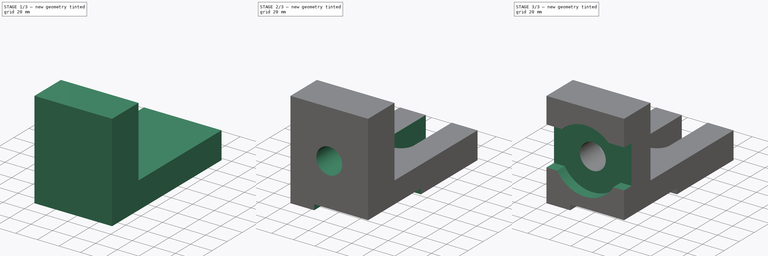
[diagram: build sequence overview — one tinted view per stage of 3, left to right]
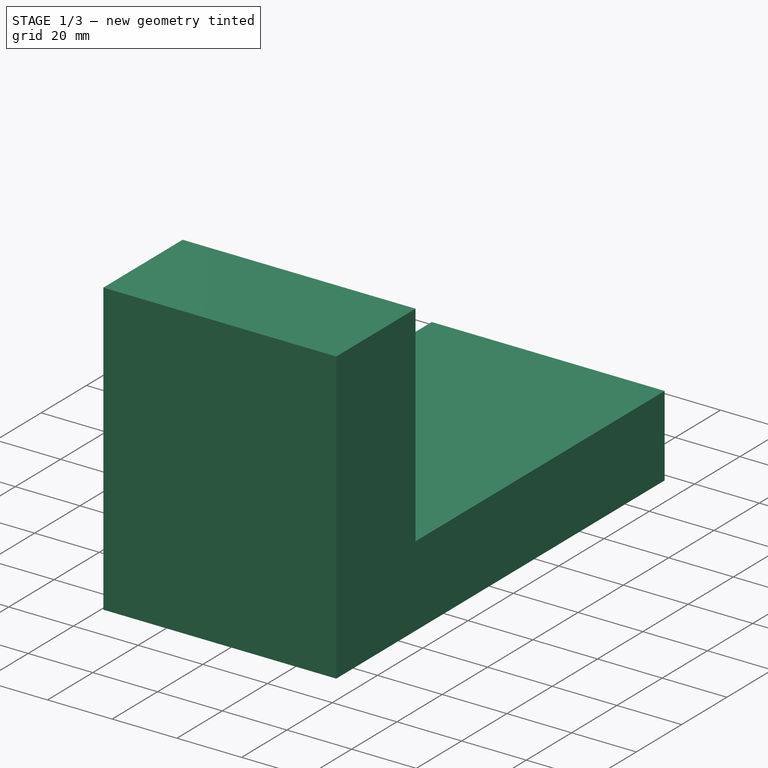
[diagram: stage 1 of 3 — iso view after this stage's code; geometry added in this stage tinted green]
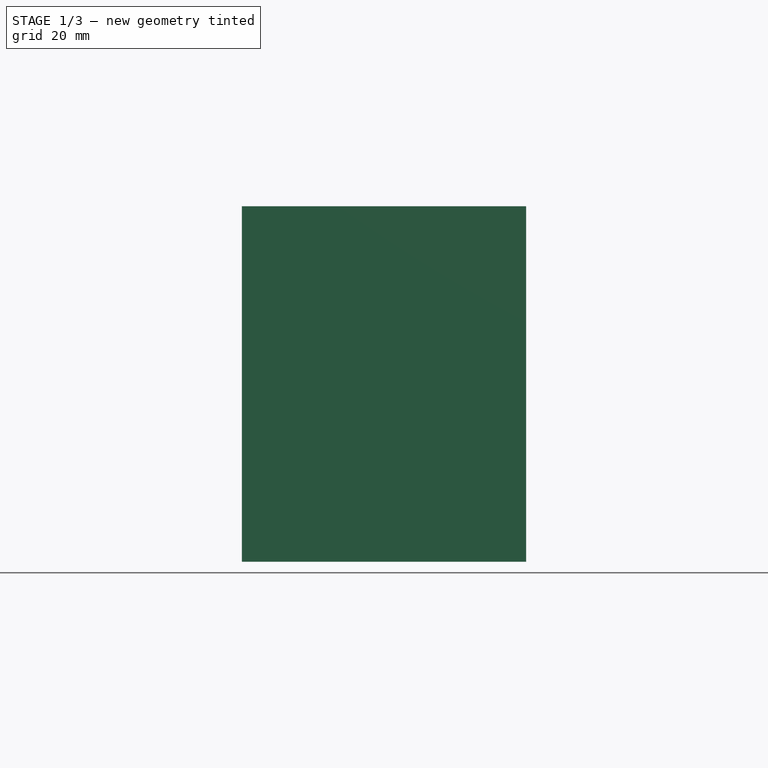
[diagram: stage 1 of 3 — front view after this stage's code; geometry added in this stage tinted green]
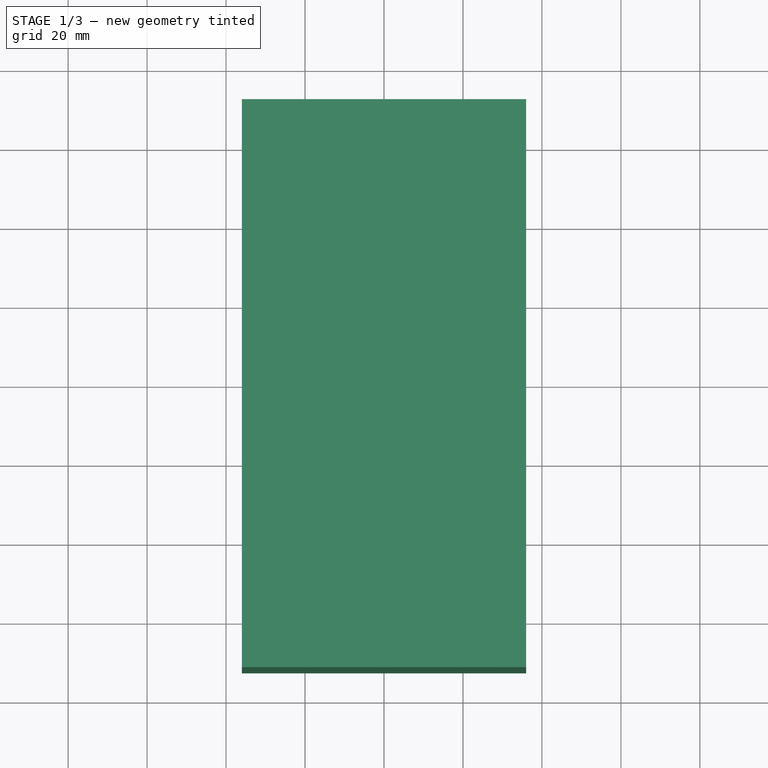
[diagram: stage 1 of 3 — top view after this stage's code; geometry added in this stage tinted green]
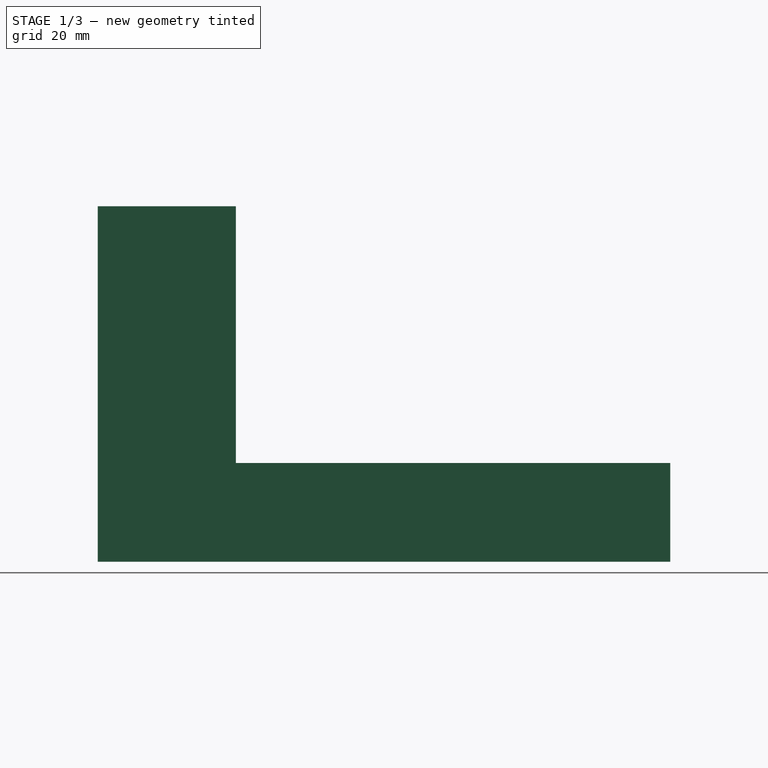
[diagram: stage 1 of 3 — right view after this stage's code; geometry added in this stage tinted green]
FCSTD DOCUMENT  (FreeCAD 0.16R)
Label: Fig 3.35 Final
License: All rights reserved
LicenseURL: http://en.wikipedia.org/wiki/All_rights_reserved
objects: Sketcher::SketchObject×7, PartDesign::Pocket×5, PartDesign::Pad×2
note: 21 computed .brp shape members not serialized (recipe doc carries the construction recipe); baked Part::Feature solids carry a one-line shape summary decoded from their .brp

FEATURE [Sketcher::SketchObject] Sketch
  sketch-geometry (4):
    g0: LineSegment StartX=-36 StartY=72.5 StartZ=0 EndX=36 EndY=72.5 EndZ=0
    g1: LineSegment StartX=36 StartY=72.5 StartZ=0 EndX=36 EndY=-72.5 EndZ=0
    g2: LineSegment StartX=36 StartY=-72.5 StartZ=0 EndX=-36 EndY=-72.5 EndZ=0
    g3: LineSegment StartX=-36 StartY=-72.5 StartZ=0 EndX=-36 EndY=72.5 EndZ=0
  constraints (12):
    c: Coincident(g0,g1)
    c: Coincident(g1,g2)
    c: Coincident(g2,g3)
    c: Coincident(g3,g0)
    c: Horizontal(g0)
    c: Horizontal(g2)
    c: Vertical(g1)
    c: Vertical(g3)
    c: DistanceY(g1,g1) = 145
    c: DistanceX(g0,g0) = 72
    c: Symmetric(g2,g0,g-1)
    c: Symmetric(g1,g2,g-2)
FEATURE [PartDesign::Pad] Pad
  Length = 25
  Length2 = 100
  Sketch = -> Sketch
  Type = 0
FEATURE [Sketcher::SketchObject] Sketch001
  ExternalGeometry = -> [Pad]
  Placement = pos=(0,0,25) rot=(0,0,1;0rad)
  Support = -> Pad [Face6]
  sketch-geometry (4):
    g0: LineSegment StartX=-36 StartY=-37.5 StartZ=0 EndX=36 EndY=-37.5 EndZ=0
    g1: LineSegment StartX=36 StartY=-37.5 StartZ=0 EndX=36 EndY=-72.5 EndZ=0
    g2: LineSegment StartX=36 StartY=-72.5 StartZ=0 EndX=-36 EndY=-72.5 EndZ=0
    g3: LineSegment StartX=-36 StartY=-72.5 StartZ=0 EndX=-36 EndY=-37.5 EndZ=0
  constraints (11):
    c: Coincident(g0,g1)
    c: Coincident(g1,g2)
    c: Coincident(g2,g3)
    c: Coincident(g3,g0)
    c: Horizontal(g0)
    c: Horizontal(g2)
    c: Vertical(g1)
    c: Vertical(g3)
    c: Coincident(g2,g-3)
    c: Coincident(g1,g-3)
    c: DistanceY(g1,g0) = 35
FEATURE [PartDesign::Pad] Pad001
  Length = 65
  Length2 = 100
  Sketch = -> Sketch001
  Type = 0
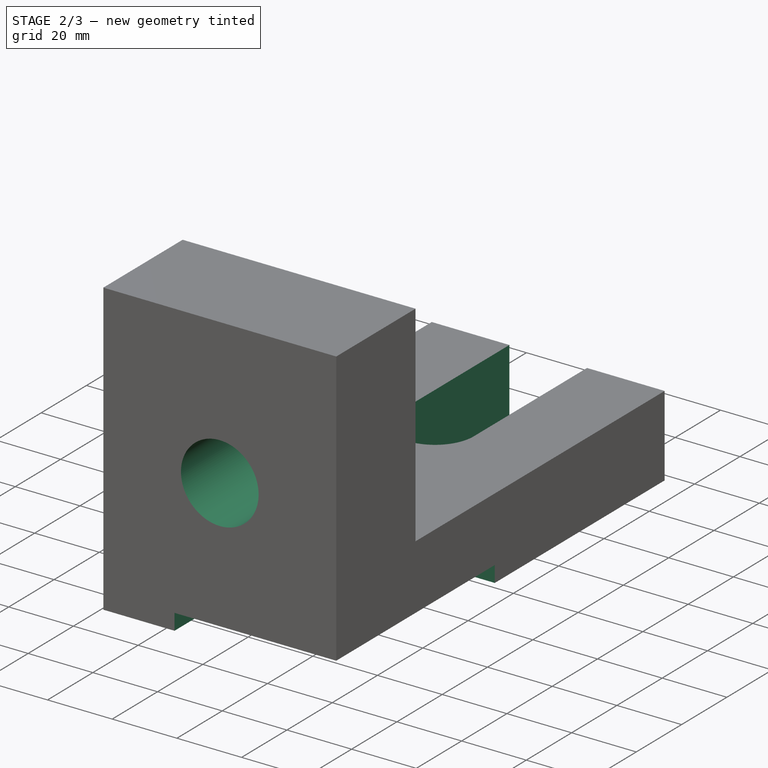
[diagram: stage 2 of 3 — iso view after this stage's code; geometry added in this stage tinted green]
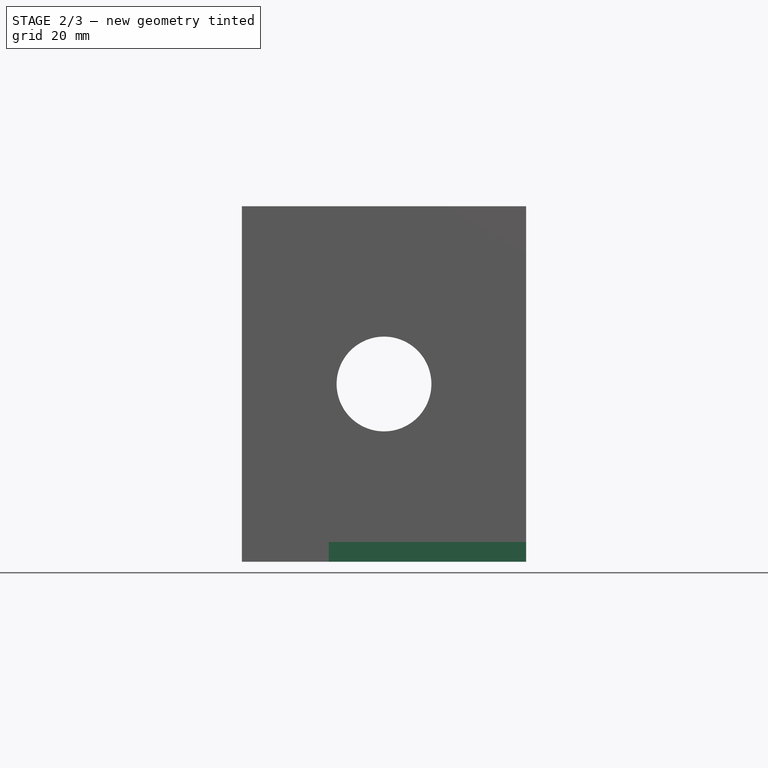
[diagram: stage 2 of 3 — front view after this stage's code; geometry added in this stage tinted green]
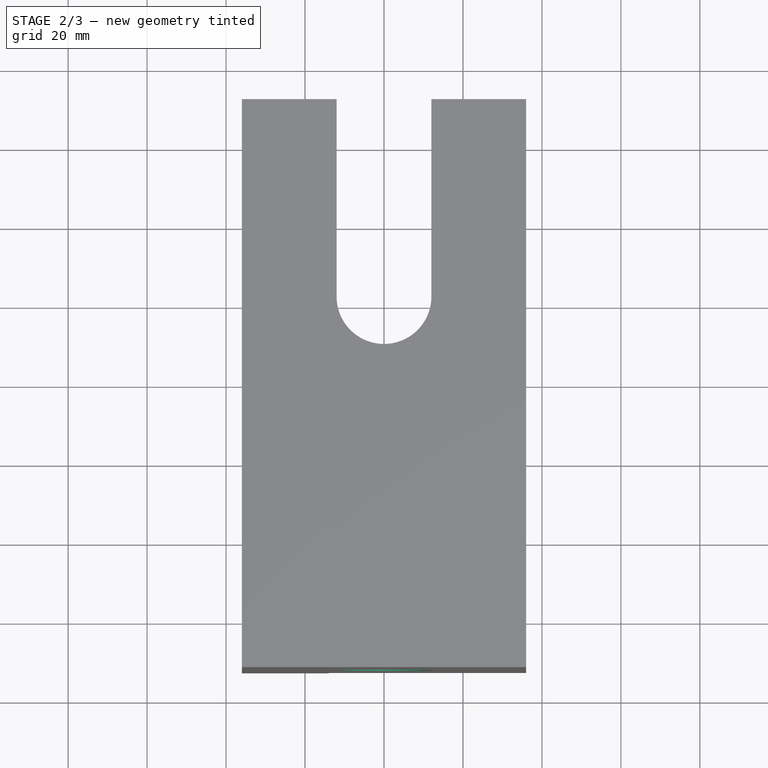
[diagram: stage 2 of 3 — top view after this stage's code; geometry added in this stage tinted green]
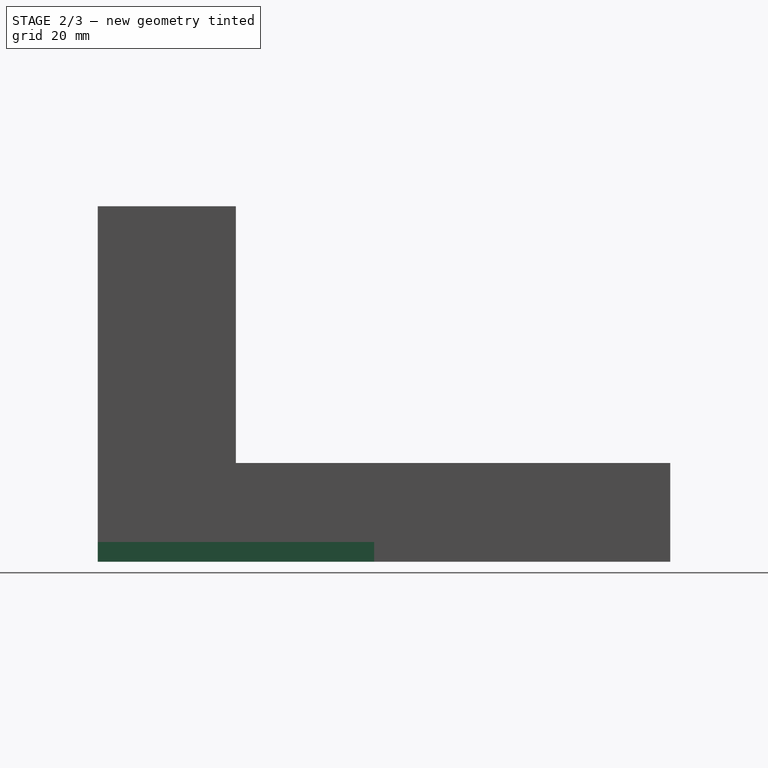
[diagram: stage 2 of 3 — right view after this stage's code; geometry added in this stage tinted green]
FEATURE [Sketcher::SketchObject] Sketch002
  ExternalGeometry = -> [Pad001]
  Placement = pos=(36,0,0) rot=(0.57735,0.57735,0.57735;2.0944rad)
  Support = -> Pad001 [Face7]
  sketch-geometry (4):
    g0: LineSegment StartX=-72.5 StartY=-13.583 StartZ=0 EndX=-2.5 EndY=-13.583 EndZ=0
    g1: LineSegment StartX=-2.5 StartY=-13.583 StartZ=0 EndX=-2.5 EndY=5 EndZ=0
    g2: LineSegment StartX=-2.5 StartY=5 StartZ=0 EndX=-72.5 EndY=5 EndZ=0
    g3: LineSegment StartX=-72.5 StartY=5 StartZ=0 EndX=-72.5 EndY=-13.583 EndZ=0
  constraints (11):
    c: Coincident(g0,g1)
    c: Coincident(g1,g2)
    c: Coincident(g2,g3)
    c: Coincident(g3,g0)
    c: Horizontal(g0)
    c: Horizontal(g2)
    c: Vertical(g1)
    c: Vertical(g3)
    c: DistanceX(g0,g0) = 70
    c: PointOnObject(g2,g-3)
    c: DistanceY(g-1,g1) = 5
FEATURE [PartDesign::Pocket] Pocket
  Length = 50
  Sketch = -> Sketch002
  Type = 0
FEATURE [Sketcher::SketchObject] Sketch003
  ExternalGeometry = -> [Pocket]
  Placement = pos=(0,0,25) rot=(0,0,1;0rad)
  Support = -> Pocket [Face5]
  sketch-geometry (4):
    g0: ArcOfCircle CenterX=0 CenterY=22.5 CenterZ=0 NormalX=0 NormalY=0 NormalZ=1 Radius=12 StartAngle=3.14159 EndAngle=6.28319
    g1: ArcOfCircle CenterX=0 CenterY=75.8232 CenterZ=0 NormalX=0 NormalY=0 NormalZ=1 Radius=12 StartAngle=0 EndAngle=3.14159
    g2: LineSegment StartX=12 StartY=22.5 StartZ=0 EndX=12 EndY=75.8232 EndZ=0
    g3: LineSegment StartX=-12 StartY=22.5 StartZ=0 EndX=-12 EndY=75.8232 EndZ=0
  constraints (9):
    c: Tangent(g0,g3) = 1.5708
    c: Tangent(g0,g2) = -1.5708
    c: Tangent(g2,g1) = -1.5708
    c: Tangent(g3,g1) = 1.5708
    c: Vertical(g2)
    c: Equal(g0,g1)
    c: PointOnObject(g0,g-2)
    c: DistanceY(g0,g-3) = 50
    c: Radius(g0) = 12
FEATURE [PartDesign::Pocket] Pocket001
  Length = 5
  Sketch = -> Sketch003
  Type = 1
FEATURE [Sketcher::SketchObject] Sketch004
  ExternalGeometry = -> [Pocket001]
  Placement = pos=(0,-72.5,0) rot=(1,0,0;1.5708rad)
  Support = -> Pocket001 [Face12]
  sketch-geometry (1):
    g0: Circle CenterX=0 CenterY=45 CenterZ=0 NormalX=0 NormalY=0 NormalZ=1 Radius=12
  constraints (3):
    c: PointOnObject(g0,g-2)
    c: Radius(g0) = 12
    c: DistanceY(g-3,g0) = 45
FEATURE [PartDesign::Pocket] Pocket002
  Length = 5
  Sketch = -> Sketch004
  Type = 1
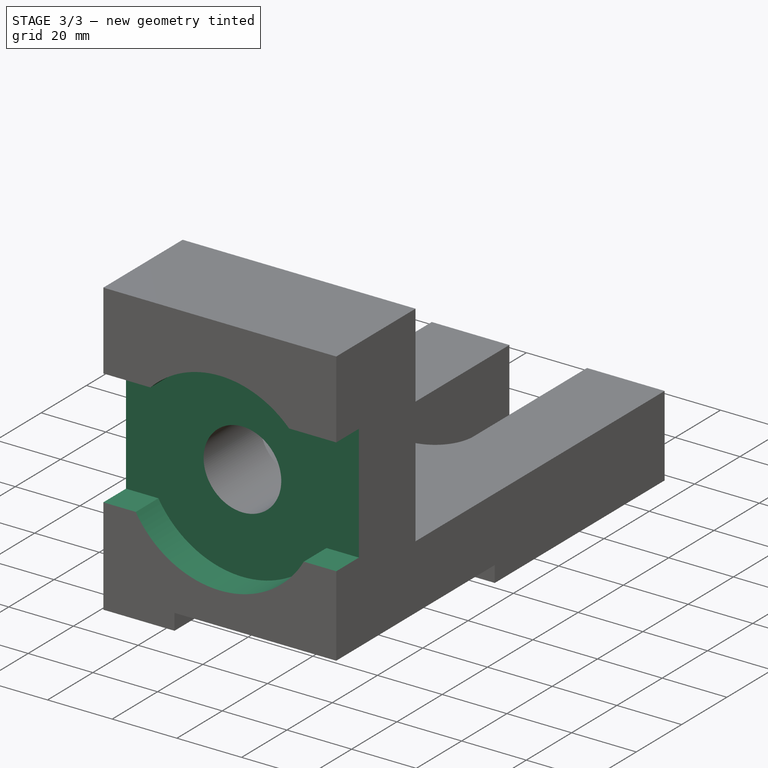
[diagram: stage 3 of 3 — iso view after this stage's code; geometry added in this stage tinted green]
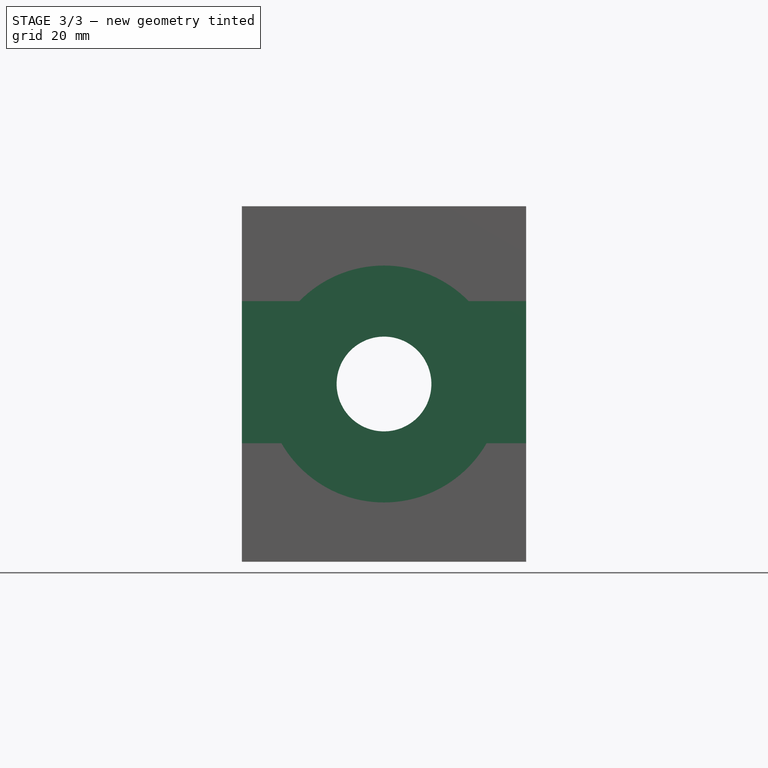
[diagram: stage 3 of 3 — front view after this stage's code; geometry added in this stage tinted green]
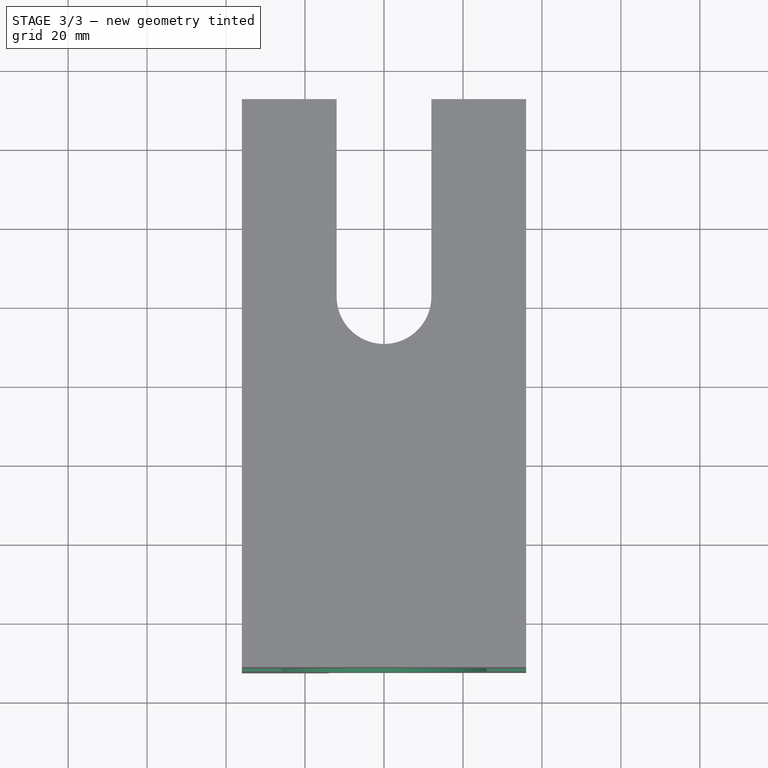
[diagram: stage 3 of 3 — top view after this stage's code; geometry added in this stage tinted green]
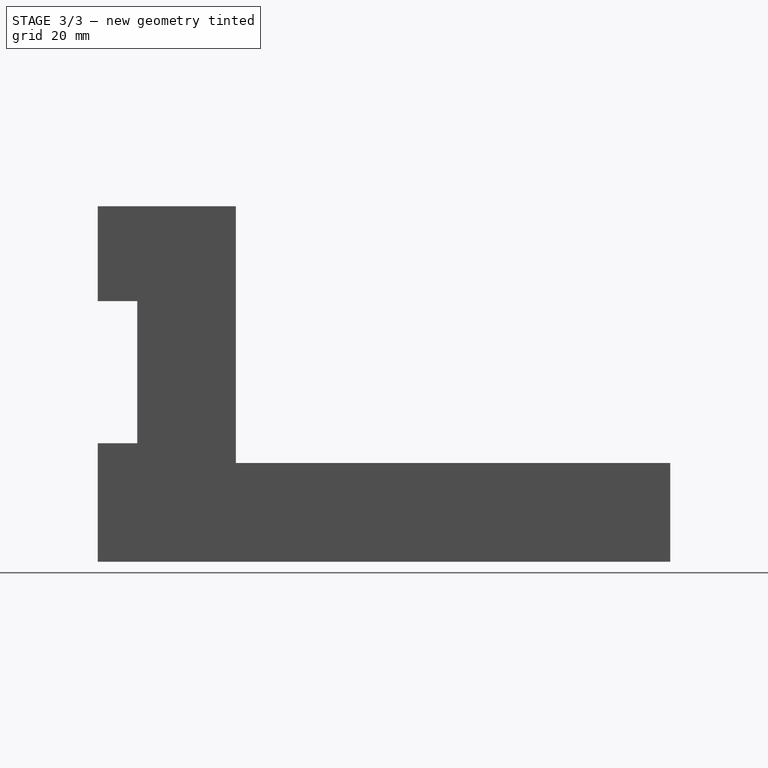
[diagram: stage 3 of 3 — right view after this stage's code; geometry added in this stage tinted green]
FEATURE [Sketcher::SketchObject] Sketch005
  ExternalGeometry = -> [Pocket002]
  Placement = pos=(0,-72.5,0) rot=(1,0,0;1.5708rad)
  Support = -> Pocket002 [Face12]
  sketch-geometry (1):
    g0: Circle CenterX=0 CenterY=45 CenterZ=0 NormalX=0 NormalY=0 NormalZ=1 Radius=30
  constraints (3):
    c: PointOnObject(g0,g-2)
    c: Coincident(g0,g-3)
    c: Radius(g0) = 30
FEATURE [PartDesign::Pocket] Pocket003
  Length = 10
  Sketch = -> Sketch005
  Type = 0
FEATURE [Sketcher::SketchObject] Sketch006
  ExternalGeometry = -> [Pocket003]
  Placement = pos=(36,0,0) rot=(0.57735,0.57735,0.57735;2.0944rad)
  Support = -> Pocket003 [Face9]
  sketch-geometry (4):
    g0: LineSegment StartX=-84.9493 StartY=66 StartZ=0 EndX=-62.5 EndY=66 EndZ=0
    g1: LineSegment StartX=-62.5 StartY=66 StartZ=0 EndX=-62.5 EndY=30 EndZ=0
    g2: LineSegment StartX=-62.5 StartY=30 StartZ=0 EndX=-84.9493 EndY=30 EndZ=0
    g3: LineSegment StartX=-84.9493 StartY=30 StartZ=0 EndX=-84.9493 EndY=66 EndZ=0
  constraints (11):
    c: Coincident(g0,g1)
    c: Coincident(g1,g2)
    c: Coincident(g2,g3)
    c: Coincident(g3,g0)
    c: Horizontal(g0)
    c: Horizontal(g2)
    c: Vertical(g1)
    c: Vertical(g3)
    c: DistanceY(g1,g1) = 36
    c: DistanceY(g0,g-3) = 24
    c: DistanceX(g-3,g0) = 10
FEATURE [PartDesign::Pocket] Pocket004
  Length = 5
  Sketch = -> Sketch006
  Type = 1
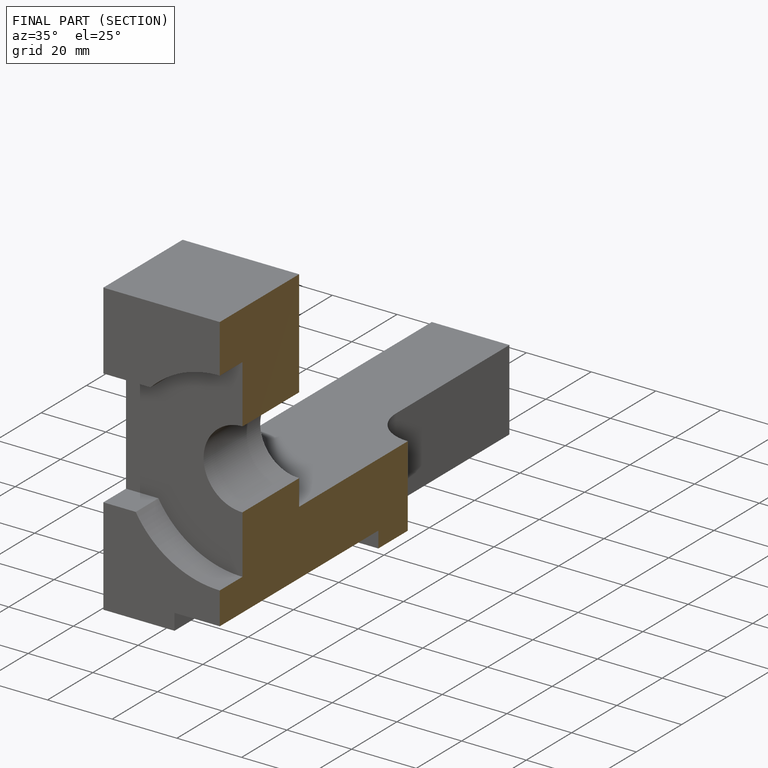
[diagram: finished part — half-section view (interior)]
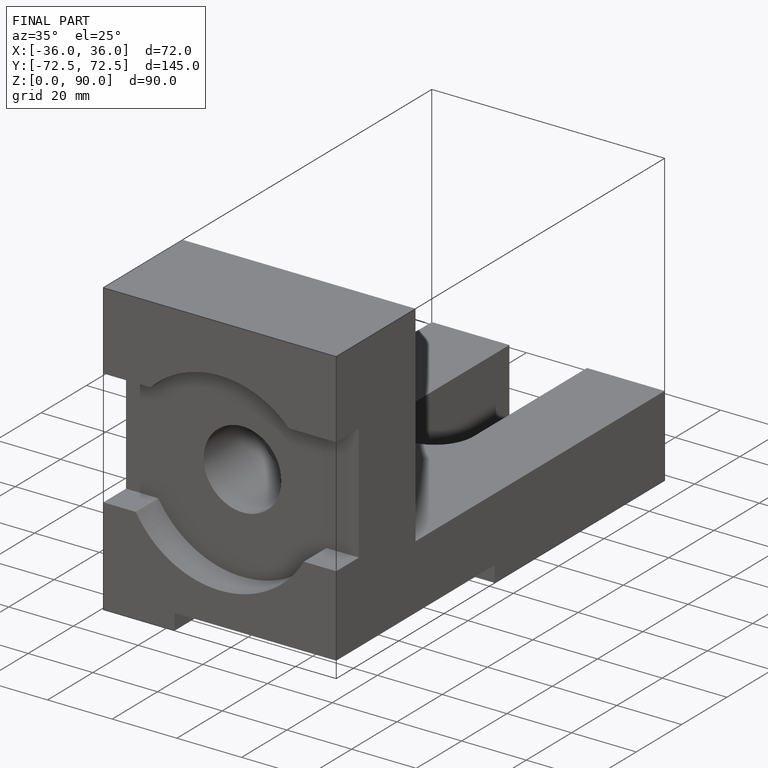
[diagram: finished part — iso view with bounding-box wireframe]
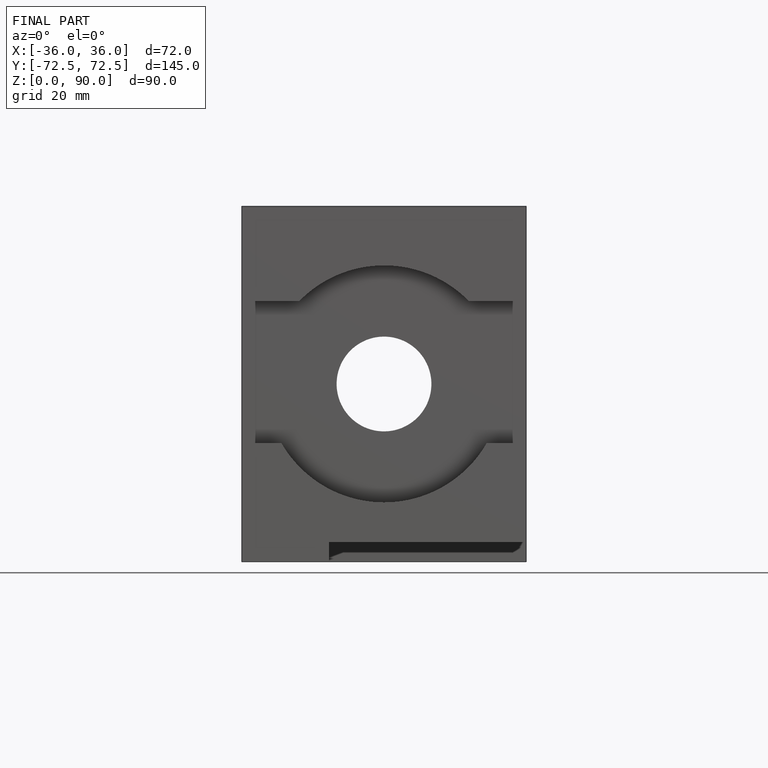
[diagram: finished part — front view with bounding-box wireframe]
